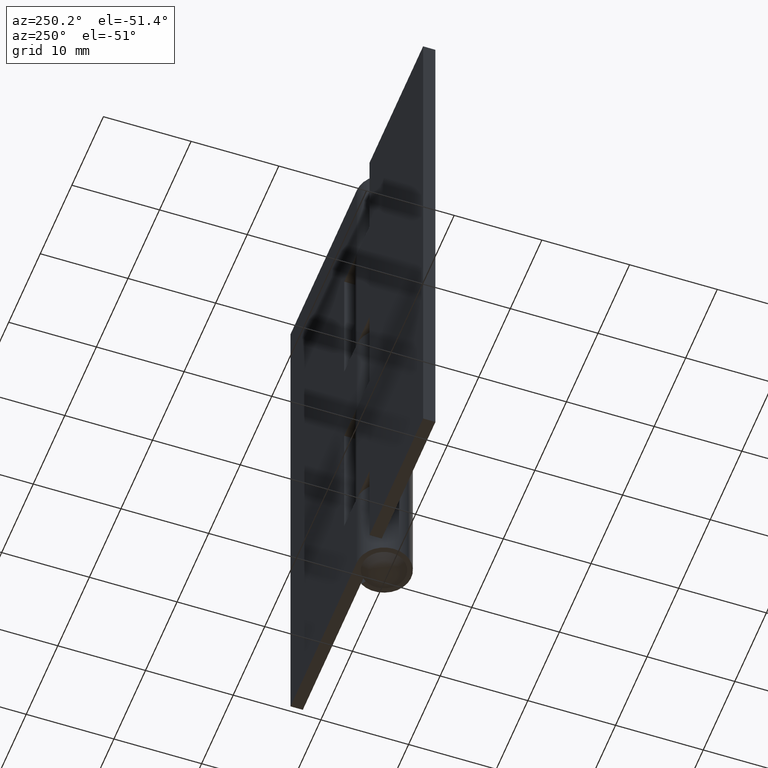
[diagram: clean part render]
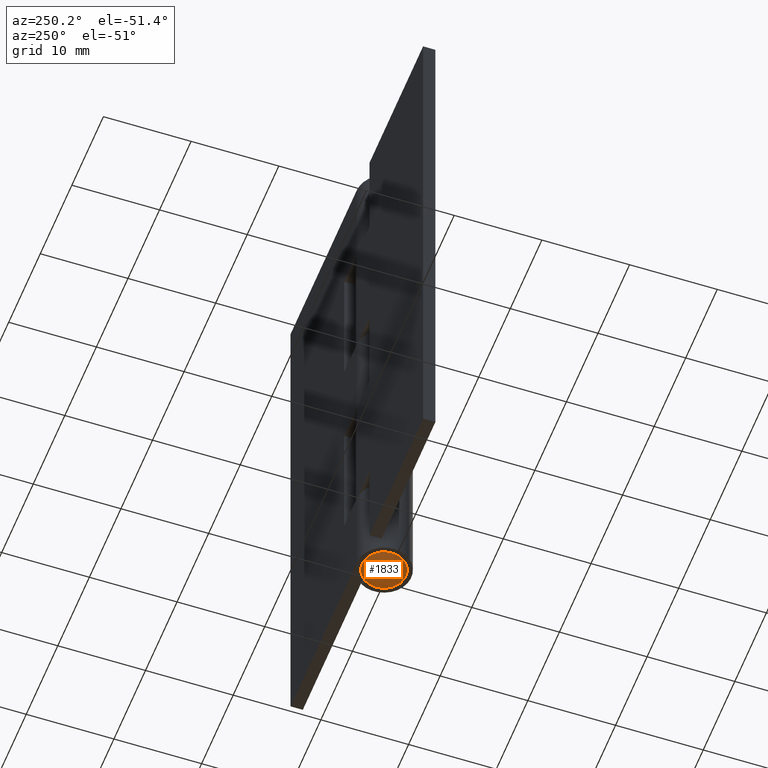
[diagram: same view with one face highlighted and labeled with its STEP entity id]
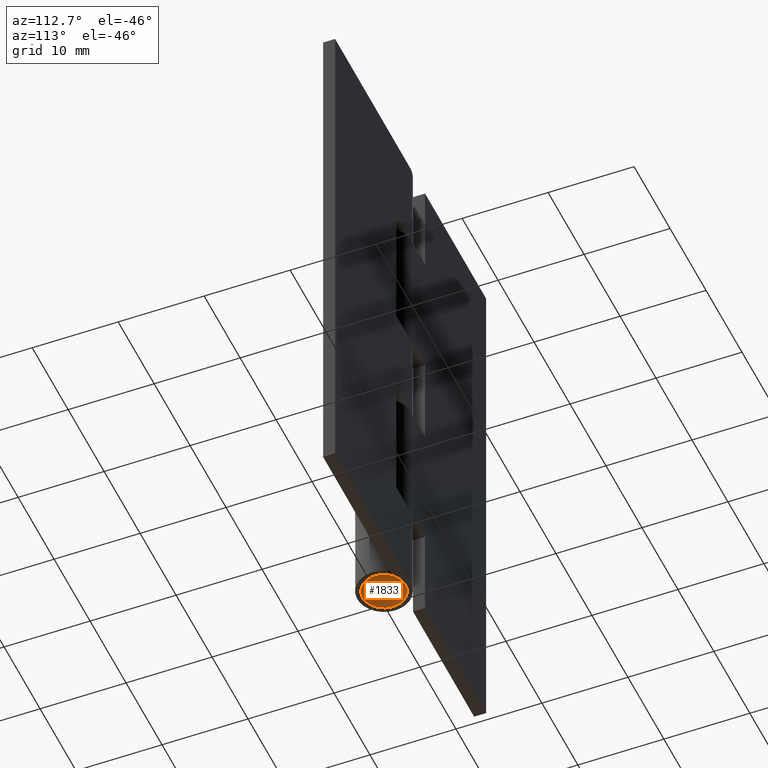
[diagram: same view with one face highlighted and labeled with its STEP entity id]
A machine part, auxiliary view. The second image highlights one B-rep face of the part: STEP entity #1833.
A second angle (auxiliary view) of the same face is appended — the face is thin or edge-on in the first view.
In plain terms, the highlighted face is a freeform B-spline surface patch.
Its self-contained STEP definition (entity closure, byte-faithful):
#1761=CARTESIAN_POINT('',(-2.299506540673277,2.299506540673257,1.023377692271859));
#1762=CARTESIAN_POINT('',(-1.336211743263531,2.672423486527034,0.175758728577834));
#1763=CARTESIAN_POINT('',(1.336211722132950,2.672423486527034,0.175758728577849));
#1764=CARTESIAN_POINT('',(2.299506514457981,2.299506550821880,1.023377669204648));
#1765=CARTESIAN_POINT('',(-2.672423486527046,1.336211743263517,0.175758728577826));
#1766=CARTESIAN_POINT('',(-1.594853232686946,1.594853232686939,-0.999996000033102));
#1767=CARTESIAN_POINT('',(1.594853207466280,1.594853232686939,-0.999996000033084));
#1768=CARTESIAN_POINT('',(2.672423457973099,1.336211750117110,0.175758697422204));
#1769=CARTESIAN_POINT('',(-2.672423486527046,-1.336211722132963,0.175758728577825));
#1770=CARTESIAN_POINT('',(-1.594853232686946,-1.594853207466286,-0.999996000033104));
#1771=CARTESIAN_POINT('',(1.594853207466280,-1.594853207466286,-0.999996000033086));
#1772=CARTESIAN_POINT('',(2.672423457973099,-1.336211728986555,0.175758697422202));
#1773=CARTESIAN_POINT('',(-2.299506550821899,-2.299506514457999,1.023377669204620));
#1774=CARTESIAN_POINT('',(-1.336211750117124,-2.672423457973112,0.175758697422179));
#1775=CARTESIAN_POINT('',(1.336211728986542,-2.672423457973112,0.175758697422195));
#1776=CARTESIAN_POINT('',(2.299506524606603,-2.299506524606620,1.023377646137408));
#1784=(BOUNDED_SURFACE()B_SPLINE_SURFACE(2,2,((#1761,#1765,#1769,#1773),(#1762,#1766,#1770,#1774),(#1763,#1767,#1771,#1775),(#1764,#1768,#1772,#1776)),.UNSPECIFIED.,.F.,.F.,.U.)B_SPLINE_SURFACE_WITH_KNOTS((3,1,3),(3,1,3),(0.0,2.908242078194842,5.816484110399397),(0.0,2.908242078194841,5.816484110399395),.UNSPECIFIED.)GEOMETRIC_REPRESENTATION_ITEM()RATIONAL_B_SPLINE_SURFACE(((1.387126502558233,1.193563251279116,1.193563251279116,1.387126496436301),(1.193563251279116,1.0,1.0,1.193563245157185),(1.193563251279116,1.0,1.0,1.193563245157185),(1.387126496436301,1.193563245157185,1.193563245157185,1.387126490314369)))REPRESENTATION_ITEM('')SURFACE());
#1785=CARTESIAN_POINT('',(-2.500000000000040,0.0,-1.776357E-015));
#1786=VERTEX_POINT('',#1785);
#1787=CARTESIAN_POINT('',(2.500000000000040,0.0,0.0));
#1788=VERTEX_POINT('',#1787);
#1789=CARTESIAN_POINT('',(-2.500000000000040,0.0,-1.776357E-015));
#1790=CARTESIAN_POINT('',(-2.500168518717171,0.265909383085924,-1.776357E-015));
#1791=CARTESIAN_POINT('',(-2.434076257122203,0.674852198407310,-1.776357E-015));
#1792=CARTESIAN_POINT('',(-2.175300404583618,1.278684985895904,-1.776357E-015));
#1793=CARTESIAN_POINT('',(-1.842781664314295,1.727058318616250,-1.776357E-015));
#1794=CARTESIAN_POINT('',(-1.374043189584409,2.111642019498042,-1.776357E-015));
#1795=CARTESIAN_POINT('',(-0.860632862317825,2.374083037236506,-1.776357E-015));
#1796=CARTESIAN_POINT('',(-0.328150803456318,2.497066252572771,-1.776353E-015));
#1797=CARTESIAN_POINT('',(0.256537530296675,2.507847901973618,-1.776383E-015));
#1798=CARTESIAN_POINT('',(0.782623071845183,2.399869885372993,-1.776265E-015));
#1799=CARTESIAN_POINT('',(1.256366890793979,2.175708344958140,-1.776770E-015));
#1800=CARTESIAN_POINT('',(1.633653763956904,1.910016219356507,-1.773824E-015));
#1801=CARTESIAN_POINT('',(1.944372765840963,1.595463706384702,-1.790288E-015));
#1802=CARTESIAN_POINT('',(2.223807907383407,1.177256102258719,-1.864790E-015));
#1803=CARTESIAN_POINT('',(2.440394123963217,0.654449959565289,-1.265135E-015));
#1804=CARTESIAN_POINT('',(2.500080266628439,0.235204209130880,-2.936955E-015));
#1805=CARTESIAN_POINT('',(2.500000000000040,0.0,0.0));
#1806=B_SPLINE_CURVE_WITH_KNOTS('',3,(#1789,#1790,#1791,#1792,#1793,#1794,#1795,#1796,#1797,#1798,#1799,#1800,#1801,#1802,#1803,#1804,#1805),.UNSPECIFIED.,.F.,.U.,(4,1,1,1,1,1,1,1,1,1,1,1,1,1,4),(0.000000257419530,0.797659061118509,1.227181641379435,1.963509334783328,2.454391587736230,3.037310961214549,3.681604878820421,4.080385459372657,4.786032534258270,5.276911189540222,5.645080720486779,6.166646588427996,6.596169434759785,7.148430129422168,7.854030914449286),.UNSPECIFIED.);
#1807=EDGE_CURVE('',#1786,#1788,#1806,.T.);
#1808=ORIENTED_EDGE('',*,*,#1807,.T.);
#1809=CARTESIAN_POINT('',(2.500000000000040,0.0,0.0));
#1810=CARTESIAN_POINT('',(2.500041931961171,-0.194303573501699,-2.893564E-015));
#1811=CARTESIAN_POINT('',(2.460449788022751,-0.531752189681863,-1.354362E-015));
#1812=CARTESIAN_POINT('',(2.309120668831715,-0.989824476066261,-1.839332E-015));
#1813=CARTESIAN_POINT('',(2.072062834111250,-1.433424333782608,-1.772679E-015));
#1814=CARTESIAN_POINT('',(1.744402690644412,-1.818046018150606,-1.777446E-015));
#1815=CARTESIAN_POINT('',(1.352240120938397,-2.116332084943958,-1.776164E-015));
#1816=CARTESIAN_POINT('',(0.934699050261960,-2.336268453181504,-1.776359E-015));
#1817=CARTESIAN_POINT('',(0.510255206762671,-2.462181654381083,-1.776356E-015));
#1818=CARTESIAN_POINT('',(0.010738495081197,-2.514465953461535,-1.776357E-015));
#1819=CARTESIAN_POINT('',(-0.471634298729600,-2.475926304644982,-1.776357E-015));
#1820=CARTESIAN_POINT('',(-0.962678424775150,-2.323644285257984,-1.776357E-015));
#1821=CARTESIAN_POINT('',(-1.388143381434889,-2.096229169071655,-1.776357E-015));
#1822=CARTESIAN_POINT('',(-1.765225262452315,-1.794445434458088,-1.776357E-015));
#1823=CARTESIAN_POINT('',(-2.080674701354327,-1.414845421324303,-1.776357E-015));
#1824=CARTESIAN_POINT('',(-2.286314340105770,-1.035671729641633,-1.776357E-015));
#1825=CARTESIAN_POINT('',(-2.452014134560831,-0.572621419903901,-1.776357E-015));
#1826=CARTESIAN_POINT('',(-2.500092846519504,-0.235212122974481,-1.776357E-015));
#1827=CARTESIAN_POINT('',(-2.500000000000040,0.0,-1.776357E-015));
#1828=B_SPLINE_CURVE_WITH_KNOTS('',3,(#1809,#1810,#1811,#1812,#1813,#1814,#1815,#1816,#1817,#1818,#1819,#1820,#1821,#1822,#1823,#1824,#1825,#1826,#1827),.UNSPECIFIED.,.F.,.U.,(4,1,1,1,1,1,1,1,1,1,1,1,1,1,1,1,4),(0.000000257420265,0.582902028155693,1.012418931408498,1.441942964342323,2.086230378301234,2.515750171513995,2.914610215752699,3.497504158456522,3.834982125243369,4.417886840522542,4.939442129616384,5.368962325235104,5.859843939807091,6.381408907218201,6.841625176294219,7.148430129422189,7.854030914449289),.UNSPECIFIED.);
#1829=EDGE_CURVE('',#1788,#1786,#1828,.T.);
#1830=ORIENTED_EDGE('',*,*,#1829,.T.);
#1831=EDGE_LOOP('',(#1808,#1830));
#1832=FACE_OUTER_BOUND('',#1831,.T.);
#1833=ADVANCED_FACE('',(#1832),#1784,.T.);